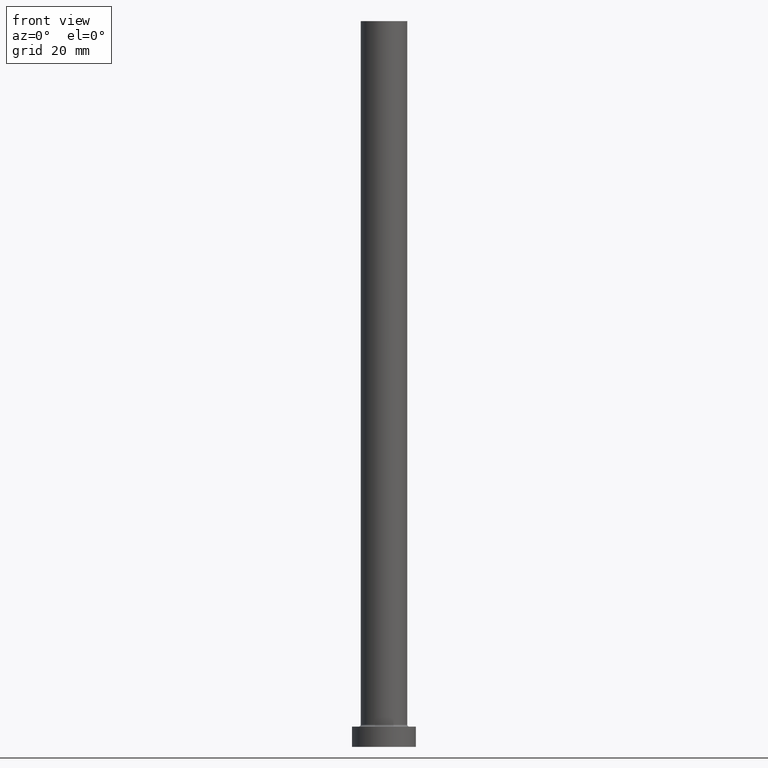
[diagram: clean part render]
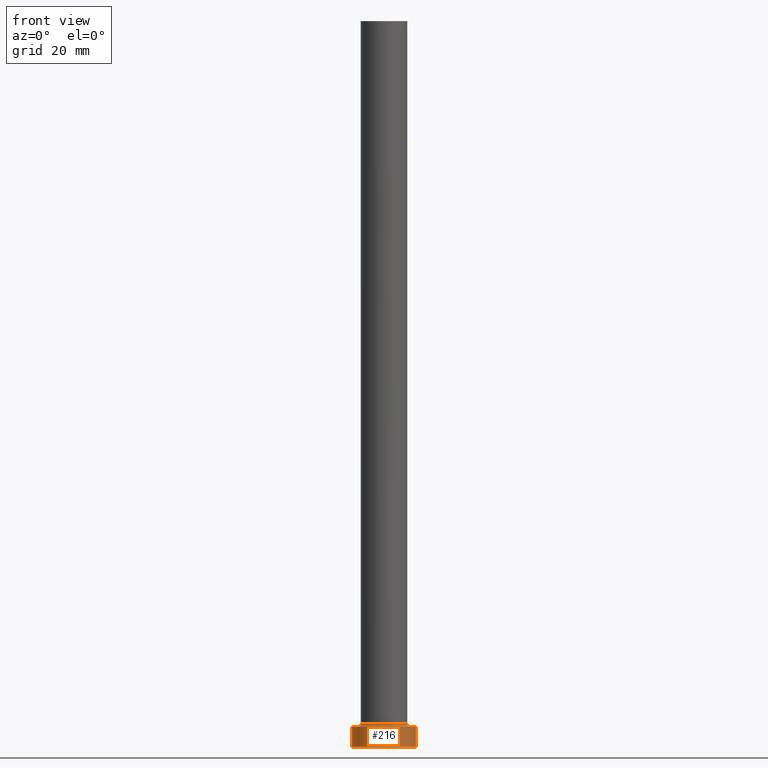
[diagram: same view with one face highlighted and labeled with its STEP entity id]
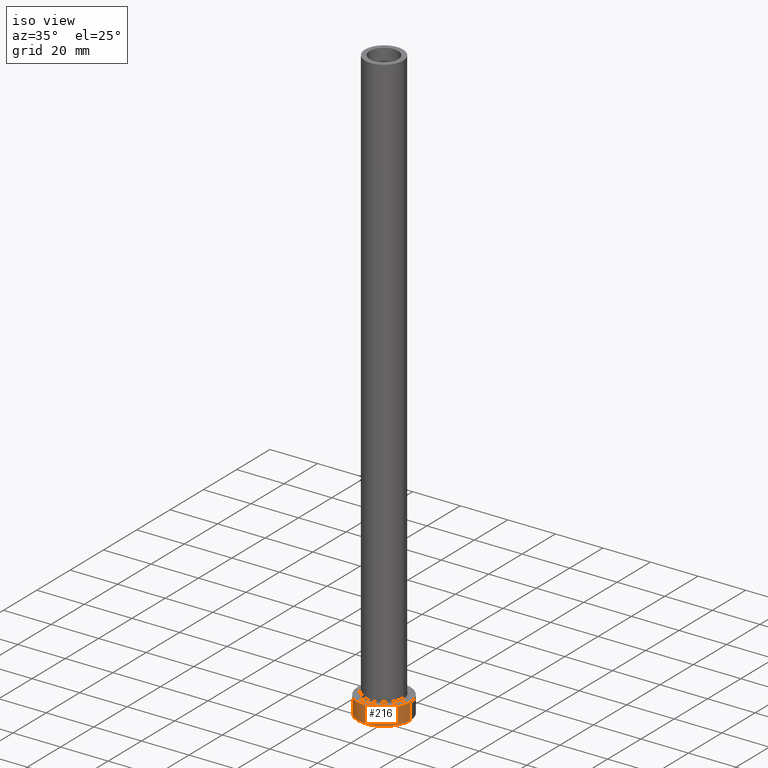
[diagram: same view with one face highlighted and labeled with its STEP entity id]
A machine part, front view. The second image highlights one B-rep face of the part: STEP entity #216.
A second angle (iso view) of the same face is appended — the face is thin or edge-on in the first view.
In plain terms, the highlighted cylindrical surface (edge-blend (fillet) strip) has radius 11 mm, axis along (-0, -0, -1).
Its self-contained STEP definition (entity closure, byte-faithful):
#26 = DIRECTION ( 'NONE',  ( 1.000000000000000000, 0.000000000000000000, 0.000000000000000000 ) ) ;
#29 = DIRECTION ( 'NONE',  ( -0.000000000000000000, -0.000000000000000000, -1.000000000000000000 ) ) ;
#33 = ORIENTED_EDGE ( 'NONE', *, *, #58, .T. ) ;
#37 = DIRECTION ( 'NONE',  ( -0.000000000000000000, -0.000000000000000000, -1.000000000000000000 ) ) ;
#43 = CIRCLE ( 'NONE', #410, 11.00000000000000000 ) ;
#57 = CARTESIAN_POINT ( 'NONE',  ( 0.000000000000000000, 0.000000000000000000, 0.000000000000000000 ) ) ;
#58 = EDGE_CURVE ( 'NONE', #251, #159, #43, .T. ) ;
#70 = EDGE_LOOP ( 'NONE', ( #403, #285, #318, #33 ) ) ;
#71 = FACE_OUTER_BOUND ( 'NONE', #70, .T. ) ;
#74 = CARTESIAN_POINT ( 'NONE',  ( 11.00000000000000000, 1.347111479062088405E-15, 7.000000000000000000 ) ) ;
#76 = VECTOR ( 'NONE', #206, 1000.000000000000000 ) ;
#81 = VERTEX_POINT ( 'NONE', #419 ) ;
#123 = VERTEX_POINT ( 'NONE', #203 ) ;
#159 = VERTEX_POINT ( 'NONE', #355 ) ;
#175 = CARTESIAN_POINT ( 'NONE',  ( -11.00000000000000000, 0.000000000000000000, 0.000000000000000000 ) ) ;
#201 = AXIS2_PLACEMENT_3D ( 'NONE', #349, #29, #432 ) ;
#202 = EDGE_CURVE ( 'NONE', #81, #159, #428, .T. ) ;
#203 = CARTESIAN_POINT ( 'NONE',  ( -11.00000000000000000, 0.000000000000000000, 7.000000000000000000 ) ) ;
#206 = DIRECTION ( 'NONE',  ( -0.000000000000000000, -0.000000000000000000, -1.000000000000000000 ) ) ;
#216 = ADVANCED_FACE ( 'NONE', ( #71 ), #388, .T. ) ;
#251 = VERTEX_POINT ( 'NONE', #175 ) ;
#285 = ORIENTED_EDGE ( 'NONE', *, *, #364, .F. ) ;
#308 = EDGE_CURVE ( 'NONE', #123, #251, #425, .T. ) ;
#318 = ORIENTED_EDGE ( 'NONE', *, *, #308, .T. ) ;
#326 = DIRECTION ( 'NONE',  ( 1.000000000000000000, 0.000000000000000000, 0.000000000000000000 ) ) ;
#349 = CARTESIAN_POINT ( 'NONE',  ( 0.000000000000000000, 0.000000000000000000, 7.000000000000000000 ) ) ;
#355 = CARTESIAN_POINT ( 'NONE',  ( 11.00000000000000000, 1.347111479062088405E-15, 0.000000000000000000 ) ) ;
#356 = CARTESIAN_POINT ( 'NONE',  ( -11.00000000000000000, 0.000000000000000000, 7.000000000000000000 ) ) ;
#364 = EDGE_CURVE ( 'NONE', #123, #81, #453, .T. ) ;
#368 = VECTOR ( 'NONE', #37, 1000.000000000000000 ) ;
#388 = CYLINDRICAL_SURFACE ( 'NONE', #201, 11.00000000000000000 ) ;
#397 = DIRECTION ( 'NONE',  ( 0.000000000000000000, 0.000000000000000000, 1.000000000000000000 ) ) ;
#403 = ORIENTED_EDGE ( 'NONE', *, *, #202, .F. ) ;
#410 = AXIS2_PLACEMENT_3D ( 'NONE', #57, #449, #26 ) ;
#415 = AXIS2_PLACEMENT_3D ( 'NONE', #439, #397, #326 ) ;
#419 = CARTESIAN_POINT ( 'NONE',  ( 11.00000000000000000, 1.347111479062088405E-15, 7.000000000000000000 ) ) ;
#425 = LINE ( 'NONE', #356, #368 ) ;
#428 = LINE ( 'NONE', #74, #76 ) ;
#432 = DIRECTION ( 'NONE',  ( -1.000000000000000000, 0.000000000000000000, 0.000000000000000000 ) ) ;
#439 = CARTESIAN_POINT ( 'NONE',  ( 0.000000000000000000, 0.000000000000000000, 7.000000000000000000 ) ) ;
#449 = DIRECTION ( 'NONE',  ( 0.000000000000000000, 0.000000000000000000, 1.000000000000000000 ) ) ;
#453 = CIRCLE ( 'NONE', #415, 11.00000000000000000 ) ;